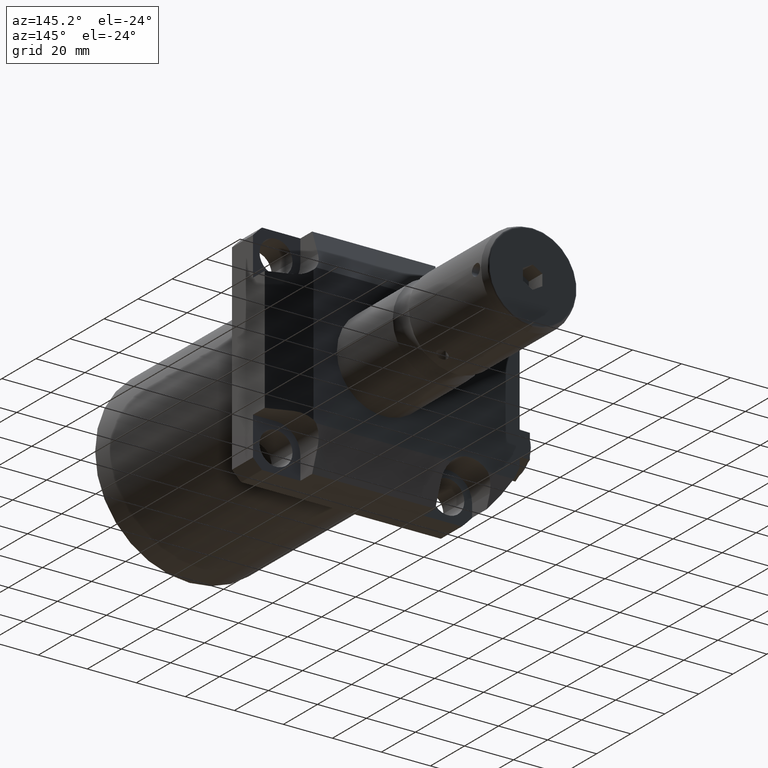
[diagram: clean part render]
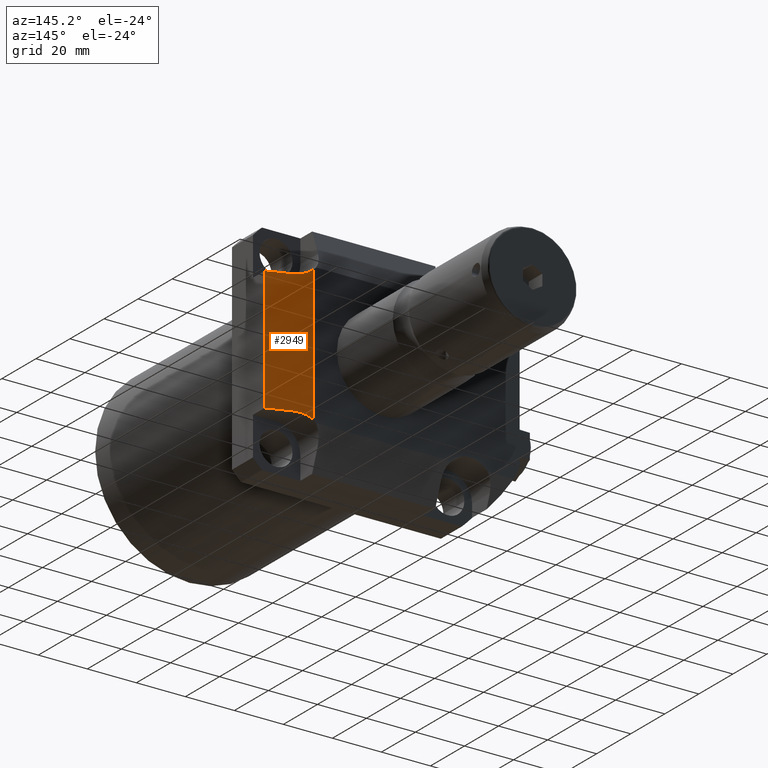
[diagram: same view with one face highlighted and labeled with its STEP entity id]
A machine part, auxiliary view. The second image highlights one B-rep face of the part: STEP entity #2949.
In plain terms, the highlighted planar face has unit normal (-0.342, -0.9397, 0).
Its self-contained STEP definition (entity closure, byte-faithful):
#643=DIRECTION('',(0.E0,0.E0,-1.E0));
#644=VECTOR('',#643,5.0242E1);
#645=CARTESIAN_POINT('',(4.445E1,1.081409725310E2,2.5121E1));
#646=LINE('',#645,#644);
#675=CARTESIAN_POINT('',(2.8575E1,1.13919E2,-2.752383740877E1));
#676=CARTESIAN_POINT('',(2.951796386468E1,1.135757892213E2,-2.671254024595E1));
#677=CARTESIAN_POINT('',(3.155697939064E1,1.128336482626E2,-2.555057255817E1));
#678=CARTESIAN_POINT('',(3.383940410619E1,1.120029136042E2,-2.5121E1));
#679=CARTESIAN_POINT('',(3.5052E1,1.115615647927E2,-2.5121E1));
#681=CARTESIAN_POINT('',(3.5052E1,1.115615647927E2,2.5121E1));
#682=CARTESIAN_POINT('',(3.383940410619E1,1.120029136042E2,2.5121E1));
#683=CARTESIAN_POINT('',(3.155697939064E1,1.128336482626E2,2.555057255817E1));
#684=CARTESIAN_POINT('',(2.951796386468E1,1.135757892213E2,2.671254024595E1));
#685=CARTESIAN_POINT('',(2.8575E1,1.13919E2,2.752383740877E1));
#691=DIRECTION('',(0.E0,0.E0,1.E0));
#692=VECTOR('',#691,5.504767481754E1);
#693=CARTESIAN_POINT('',(2.8575E1,1.13919E2,-2.752383740877E1));
#694=LINE('',#693,#692);
#759=DIRECTION('',(9.396926207859E-1,-3.420201433257E-1,0.E0));
#760=VECTOR('',#759,1.000114270573E1);
#761=CARTESIAN_POINT('',(3.5052E1,1.115615647927E2,2.5121E1));
#762=LINE('',#761,#760);
#1201=DIRECTION('',(9.396926207859E-1,-3.420201433257E-1,0.E0));
#1202=VECTOR('',#1201,1.000114270573E1);
#1203=CARTESIAN_POINT('',(3.5052E1,1.115615647927E2,-2.5121E1));
#1204=LINE('',#1203,#1202);
#1686=CARTESIAN_POINT('',(2.8575E1,1.13919E2,-2.752383740877E1));
#1687=CARTESIAN_POINT('',(2.8575E1,1.13919E2,2.752383740877E1));
#1688=VERTEX_POINT('',#1686);
#1689=VERTEX_POINT('',#1687);
#1690=CARTESIAN_POINT('',(4.445E1,1.081409725310E2,2.5121E1));
#1691=CARTESIAN_POINT('',(4.445E1,1.081409725310E2,-2.5121E1));
#1692=VERTEX_POINT('',#1690);
#1693=VERTEX_POINT('',#1691);
#1780=VERTEX_POINT('',#679);
#1781=VERTEX_POINT('',#681);
#2931=CARTESIAN_POINT('',(2.8575E1,1.13919E2,5.334E1));
#2932=DIRECTION('',(-3.420201433257E-1,-9.396926207859E-1,0.E0));
#2933=DIRECTION('',(9.396926207859E-1,-3.420201433257E-1,0.E0));
#2934=AXIS2_PLACEMENT_3D('',#2931,#2932,#2933);
#2935=PLANE('',#2934);
#2937=ORIENTED_EDGE('',*,*,#2936,.T.);
#2939=ORIENTED_EDGE('',*,*,#2938,.T.);
#2940=ORIENTED_EDGE('',*,*,#2917,.F.);
#2942=ORIENTED_EDGE('',*,*,#2941,.F.);
#2944=ORIENTED_EDGE('',*,*,#2943,.T.);
#2946=ORIENTED_EDGE('',*,*,#2945,.F.);
#2947=EDGE_LOOP('',(#2937,#2939,#2940,#2942,#2944,#2946));
#2948=FACE_OUTER_BOUND('',#2947,.F.);
#680=B_SPLINE_CURVE_WITH_KNOTS('',3,(#675,#676,#677,#678,#679),.UNSPECIFIED.,
.F.,.F.,(4,1,4),(0.E0,5.E-1,1.E0),.UNSPECIFIED.);
#686=B_SPLINE_CURVE_WITH_KNOTS('',3,(#681,#682,#683,#684,#685),.UNSPECIFIED.,
.F.,.F.,(4,1,4),(0.E0,5.E-1,1.E0),.UNSPECIFIED.);
#2917=EDGE_CURVE('',#1692,#1693,#646,.T.);
#2936=EDGE_CURVE('',#1688,#1780,#680,.T.);
#2938=EDGE_CURVE('',#1780,#1693,#1204,.T.);
#2941=EDGE_CURVE('',#1781,#1692,#762,.T.);
#2943=EDGE_CURVE('',#1781,#1689,#686,.T.);
#2945=EDGE_CURVE('',#1688,#1689,#694,.T.);
#2949=ADVANCED_FACE('',(#2948),#2935,.F.);